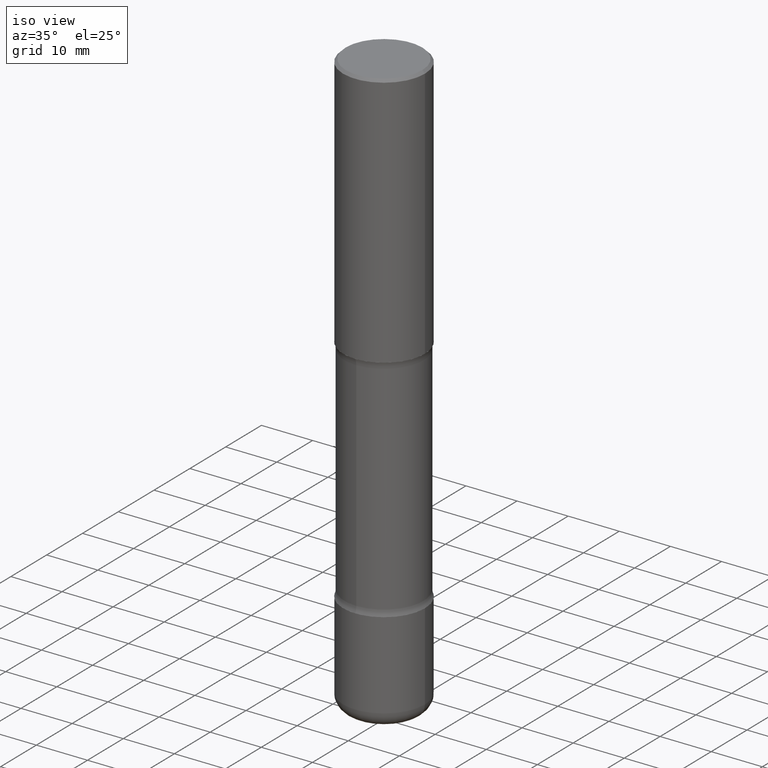
[diagram: clean part render]
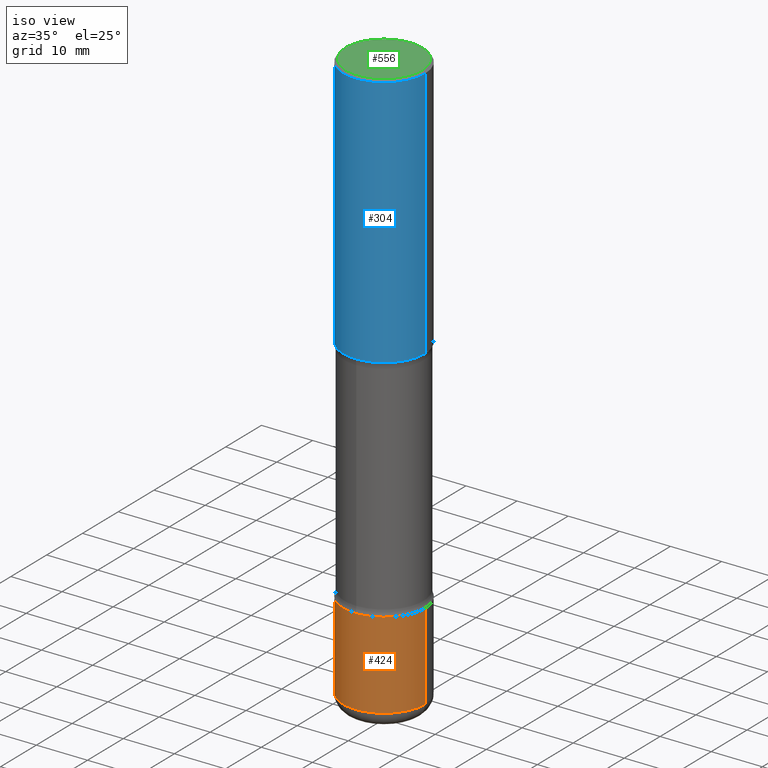
[diagram: same view with three faces highlighted in distinct colors, each labeled with its STEP entity id]
A machine part, iso view with three faces highlighted in distinct colors.
Their STEP definitions:

[orange] entity #424 — the highlighted cylindrical surface (partial cylindrical patch) has radius 7.9997 mm, axis along (-0, 0, 1).
#8 = CARTESIAN_POINT ( 'NONE',  ( 9.146542428893650504E-29, -1.305883850354113594E-14, -3.740200000000000635 ) ) ;
#13 = CARTESIAN_POINT ( 'NONE',  ( -0.3149500000000002853, -1.315783261735241693E-14, -4.409500000000000419 ) ) ;
#21 = CARTESIAN_POINT ( 'NONE',  ( 0.000000000000000000, 0.000000000000000000, 0.000000000000000000 ) ) ;
#43 = LINE ( 'NONE', #318, #110 ) ;
#56 = CIRCLE ( 'NONE', #370, 0.3149500000000002298 ) ;
#68 = ORIENTED_EDGE ( 'NONE', *, *, #102, .F. ) ;
#76 = EDGE_LOOP ( 'NONE', ( #467, #477, #510, #68 ) ) ;
#77 = CYLINDRICAL_SURFACE ( 'NONE', #484, 0.3149500000000002853 ) ;
#82 = DIRECTION ( 'NONE',  ( 1.000000000000000000, -6.982962677686267499E-15, 4.876176775795936353E-29 ) ) ;
#102 = EDGE_CURVE ( 'NONE', #287, #470, #56, .T. ) ;
#110 = VECTOR ( 'NONE', #188, 39.37007874015748143 ) ;
#113 = FACE_OUTER_BOUND ( 'NONE', #76, .T. ) ;
#141 = AXIS2_PLACEMENT_3D ( 'NONE', #171, #503, #418 ) ;
#171 = CARTESIAN_POINT ( 'NONE',  ( 1.078329470087336022E-28, -1.539568696362885450E-14, -4.409500000000000419 ) ) ;
#173 = DIRECTION ( 'NONE',  ( -2.445468806185136597E-29, 3.491481338843145583E-15, 1.000000000000000000 ) ) ;
#185 = DIRECTION ( 'NONE',  ( 1.000000000000000000, -6.982962677686264344E-15, 0.000000000000000000 ) ) ;
#188 = DIRECTION ( 'NONE',  ( -2.445468806185136877E-29, 3.491481338843145188E-15, 1.000000000000000000 ) ) ;
#196 = CARTESIAN_POINT ( 'NONE',  ( 0.3149500000000002853, -1.759497105896614279E-14, -4.409500000000000419 ) ) ;
#200 = DIRECTION ( 'NONE',  ( -2.445468806185136597E-29, 3.491481338843145583E-15, 1.000000000000000000 ) ) ;
#207 = EDGE_CURVE ( 'NONE', #340, #287, #43, .T. ) ;
#239 = LINE ( 'NONE', #408, #419 ) ;
#248 = EDGE_CURVE ( 'NONE', #337, #470, #239, .T. ) ;
#287 = VERTEX_POINT ( 'NONE', #541 ) ;
#318 = CARTESIAN_POINT ( 'NONE',  ( -0.3149500000000002853, 2.237854346276437562E-15, -1.549218606675783797E-29 ) ) ;
#337 = VERTEX_POINT ( 'NONE', #196 ) ;
#340 = VERTEX_POINT ( 'NONE', #13 ) ;
#370 = AXIS2_PLACEMENT_3D ( 'NONE', #8, #173, #185 ) ;
#391 = CARTESIAN_POINT ( 'NONE',  ( 0.3149500000000002298, -1.525812259887842581E-14, -3.740200000000000635 ) ) ;
#408 = CARTESIAN_POINT ( 'NONE',  ( 0.3149500000000002853, -2.199284095337291843E-15, 1.535751875536931531E-29 ) ) ;
#415 = DIRECTION ( 'NONE',  ( -2.445468806185136877E-29, 3.491481338843145188E-15, 1.000000000000000000 ) ) ;
#416 = EDGE_CURVE ( 'NONE', #340, #337, #475, .T. ) ;
#418 = DIRECTION ( 'NONE',  ( 1.000000000000000000, -6.982962677686263555E-15, 0.000000000000000000 ) ) ;
#419 = VECTOR ( 'NONE', #415, 39.37007874015748143 ) ;
#424 = ADVANCED_FACE ( 'NONE', ( #113 ), #77, .T. ) ;
#467 = ORIENTED_EDGE ( 'NONE', *, *, #207, .F. ) ;
#470 = VERTEX_POINT ( 'NONE', #391 ) ;
#475 = CIRCLE ( 'NONE', #141, 0.3149500000000002853 ) ;
#477 = ORIENTED_EDGE ( 'NONE', *, *, #416, .T. ) ;
#484 = AXIS2_PLACEMENT_3D ( 'NONE', #21, #200, #82 ) ;
#503 = DIRECTION ( 'NONE',  ( -2.445468806185136597E-29, 3.491481338843145583E-15, 1.000000000000000000 ) ) ;
#510 = ORIENTED_EDGE ( 'NONE', *, *, #248, .T. ) ;
#541 = CARTESIAN_POINT ( 'NONE',  ( -0.3149500000000002298, -1.198940838730855845E-14, -3.740200000000000635 ) ) ;

[blue] entity #304 — the highlighted cylindrical surface (partial cylindrical patch) has radius 7.9997 mm, axis along (-0, 0, 1).
#3 = AXIS2_PLACEMENT_3D ( 'NONE', #219, #385, #520 ) ;
#14 = CARTESIAN_POINT ( 'NONE',  ( 4.813905344975441835E-29, -6.872981015512731707E-15, -1.968500000000000139 ) ) ;
#17 = VECTOR ( 'NONE', #315, 39.37007874015748143 ) ;
#18 = EDGE_CURVE ( 'NONE', #119, #262, #395, .T. ) ;
#23 = VECTOR ( 'NONE', #220, 39.37007874015748143 ) ;
#54 = DIRECTION ( 'NONE',  ( 1.000000000000000000, -6.982962677686269866E-15, 0.000000000000000000 ) ) ;
#96 = EDGE_LOOP ( 'NONE', ( #212, #222, #273, #426 ) ) ;
#101 = DIRECTION ( 'NONE',  ( -2.445468806185136597E-29, 3.491481338843145583E-15, 1.000000000000000000 ) ) ;
#107 = CYLINDRICAL_SURFACE ( 'NONE', #167, 0.3149500000000000077 ) ;
#117 = EDGE_CURVE ( 'NONE', #488, #170, #267, .T. ) ;
#119 = VERTEX_POINT ( 'NONE', #140 ) ;
#140 = CARTESIAN_POINT ( 'NONE',  ( -0.3149500000000001743, -1.233550974868359743E-15, -1.968500000000000139 ) ) ;
#148 = CARTESIAN_POINT ( 'NONE',  ( -0.3149499999999998967, 2.129454468560425784E-15, -0.02000000000000006981 ) ) ;
#154 = FACE_OUTER_BOUND ( 'NONE', #96, .T. ) ;
#167 = AXIS2_PLACEMENT_3D ( 'NONE', #232, #447, #192 ) ;
#170 = VERTEX_POINT ( 'NONE', #440 ) ;
#191 = EDGE_CURVE ( 'NONE', #262, #170, #277, .T. ) ;
#192 = DIRECTION ( 'NONE',  ( 1.000000000000000000, -6.982962677686266711E-15, 4.876176775795936353E-29 ) ) ;
#212 = ORIENTED_EDGE ( 'NONE', *, *, #18, .F. ) ;
#219 = CARTESIAN_POINT ( 'NONE',  ( 4.890937612370289799E-31, -6.982962677686315028E-17, -0.02000000000000006981 ) ) ;
#220 = DIRECTION ( 'NONE',  ( -2.445468806185136877E-29, 3.491481338843145188E-15, 1.000000000000000000 ) ) ;
#222 = ORIENTED_EDGE ( 'NONE', *, *, #255, .T. ) ;
#232 = CARTESIAN_POINT ( 'NONE',  ( 0.000000000000000000, 0.000000000000000000, 0.000000000000000000 ) ) ;
#234 = CIRCLE ( 'NONE', #242, 0.3149500000000001743 ) ;
#242 = AXIS2_PLACEMENT_3D ( 'NONE', #14, #101, #54 ) ;
#255 = EDGE_CURVE ( 'NONE', #119, #488, #234, .T. ) ;
#262 = VERTEX_POINT ( 'NONE', #148 ) ;
#267 = LINE ( 'NONE', #398, #17 ) ;
#273 = ORIENTED_EDGE ( 'NONE', *, *, #117, .T. ) ;
#277 = CIRCLE ( 'NONE', #3, 0.3149499999999998967 ) ;
#304 = ADVANCED_FACE ( 'NONE', ( #154 ), #107, .T. ) ;
#315 = DIRECTION ( 'NONE',  ( -2.445468806185136877E-29, 3.491481338843145188E-15, 1.000000000000000000 ) ) ;
#362 = CARTESIAN_POINT ( 'NONE',  ( 0.3149500000000001743, -9.072265110850023156E-15, -1.968500000000000139 ) ) ;
#385 = DIRECTION ( 'NONE',  ( -2.445468806185136597E-29, 3.491481338843145583E-15, 1.000000000000000000 ) ) ;
#392 = CARTESIAN_POINT ( 'NONE',  ( -0.3149500000000000077, 2.237854346276435590E-15, -1.549218606675782676E-29 ) ) ;
#395 = LINE ( 'NONE', #392, #23 ) ;
#398 = CARTESIAN_POINT ( 'NONE',  ( 0.3149500000000000077, -2.199284095337289871E-15, 1.535751875536930130E-29 ) ) ;
#426 = ORIENTED_EDGE ( 'NONE', *, *, #191, .F. ) ;
#440 = CARTESIAN_POINT ( 'NONE',  ( 0.3149499999999998967, -2.230543471175006266E-15, -0.02000000000000006981 ) ) ;
#447 = DIRECTION ( 'NONE',  ( -2.445468806185136597E-29, 3.491481338843145583E-15, 1.000000000000000000 ) ) ;
#488 = VERTEX_POINT ( 'NONE', #362 ) ;
#520 = DIRECTION ( 'NONE',  ( 1.000000000000000000, -6.982962677686265922E-15, 0.000000000000000000 ) ) ;

[green] entity #556 — the highlighted planar face has unit normal (0, -0, -1).
#16 = CARTESIAN_POINT ( 'NONE',  ( -3.131554243005659264E-46, 4.471029511141341874E-32, 1.280553747030123384E-17 ) ) ;
#35 = CIRCLE ( 'NONE', #413, 0.2949499999999998234 ) ;
#59 = CIRCLE ( 'NONE', #335, 0.2949499999999998234 ) ;
#93 = CARTESIAN_POINT ( 'NONE',  ( 0.2949499999999998234, -2.127023677808859286E-15, 1.280553747031587399E-17 ) ) ;
#104 = DIRECTION ( 'NONE',  ( -2.445468806185136597E-29, 3.491481338843145583E-15, 1.000000000000000000 ) ) ;
#111 = AXIS2_PLACEMENT_3D ( 'NONE', #516, #211, #286 ) ;
#146 = DIRECTION ( 'NONE',  ( 1.000000000000000000, -6.982962677686267499E-15, 4.876053491004737710E-29 ) ) ;
#156 = EDGE_LOOP ( 'NONE', ( #430, #344 ) ) ;
#165 = VERTEX_POINT ( 'NONE', #93 ) ;
#211 = DIRECTION ( 'NONE',  ( 2.438088387897960049E-29, -3.491481338843145188E-15, -1.000000000000000000 ) ) ;
#261 = DIRECTION ( 'NONE',  ( 1.000000000000000000, -6.982962677686267499E-15, 4.876053491004737710E-29 ) ) ;
#285 = EDGE_CURVE ( 'NONE', #165, #431, #35, .T. ) ;
#286 = DIRECTION ( 'NONE',  ( -1.000000000000000000, 6.982962677686265922E-15, -4.876176775795935793E-29 ) ) ;
#309 = CARTESIAN_POINT ( 'NONE',  ( -0.2949499999999998234, 2.094539655171994135E-15, 1.280553747028670770E-17 ) ) ;
#328 = PLANE ( 'NONE',  #111 ) ;
#330 = DIRECTION ( 'NONE',  ( -2.445468806185136597E-29, 3.491481338843145583E-15, 1.000000000000000000 ) ) ;
#335 = AXIS2_PLACEMENT_3D ( 'NONE', #522, #330, #261 ) ;
#344 = ORIENTED_EDGE ( 'NONE', *, *, #285, .T. ) ;
#413 = AXIS2_PLACEMENT_3D ( 'NONE', #16, #104, #146 ) ;
#430 = ORIENTED_EDGE ( 'NONE', *, *, #506, .T. ) ;
#431 = VERTEX_POINT ( 'NONE', #309 ) ;
#506 = EDGE_CURVE ( 'NONE', #431, #165, #59, .T. ) ;
#512 = FACE_OUTER_BOUND ( 'NONE', #156, .T. ) ;
#516 = CARTESIAN_POINT ( 'NONE',  ( 2.059624841783562880E-15, 0.2949499999999998234, -1.023409652156634547E-15 ) ) ;
#522 = CARTESIAN_POINT ( 'NONE',  ( -3.131554243005659264E-46, 4.471029511141341874E-32, 1.280553747030123384E-17 ) ) ;
#556 = ADVANCED_FACE ( 'NONE', ( #512 ), #328, .F. ) ;